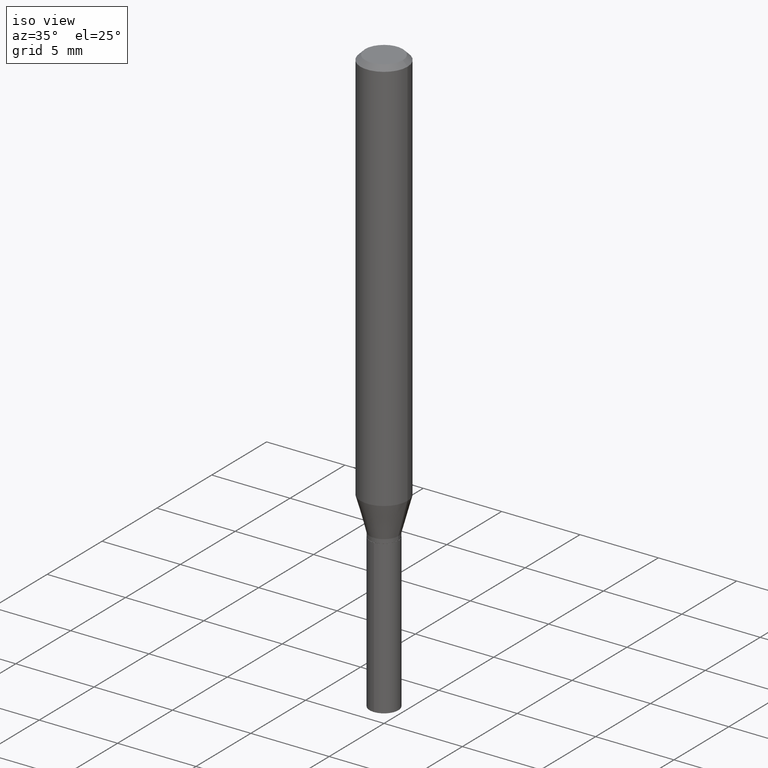
[diagram: clean part render]
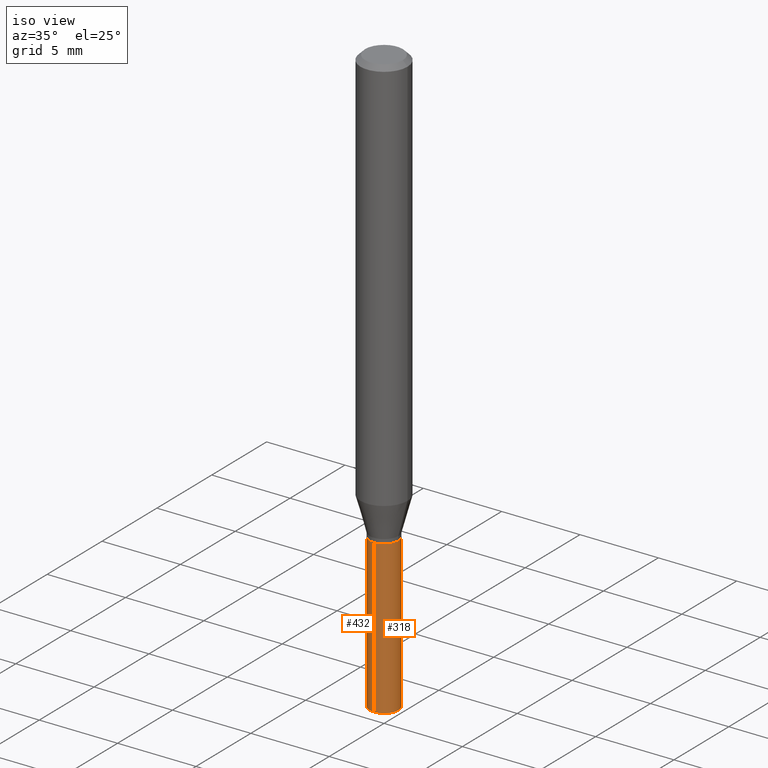
[diagram: same view with one multi-face feature highlighted, each face labeled with its STEP entity id]
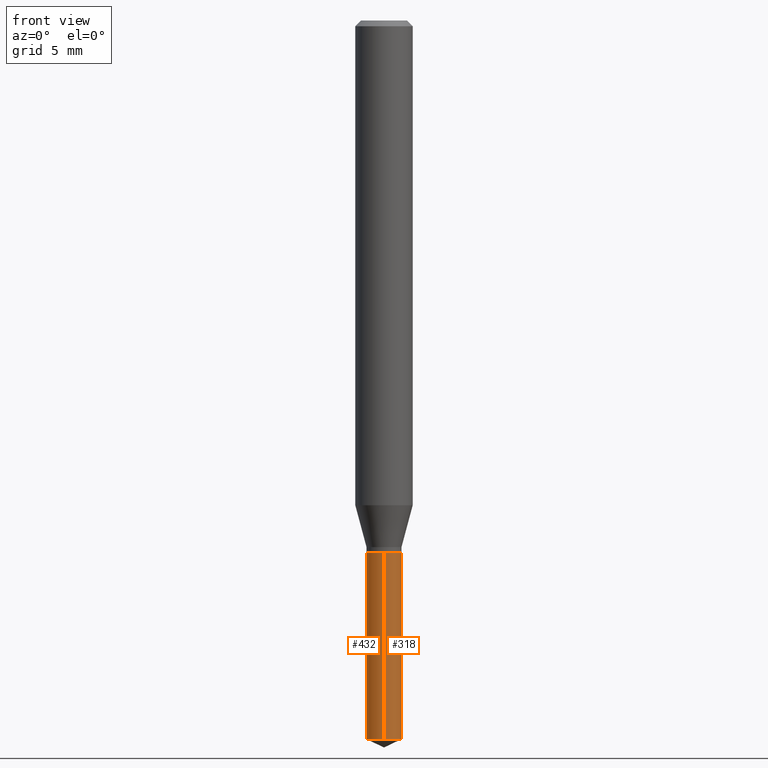
[diagram: same view with one multi-face feature highlighted, each face labeled with its STEP entity id]
A machine part, iso view. The highlighted faces form ONE feature: a constant-radius fillet chain: 2 tangent blend faces with common blend radius 0.9144 mm. The faces share edges in the B-rep.
A second angle (front view) of the same feature is appended — it is thin or edge-on in the first view.
Their STEP definitions:
[1] entity #432 (Cylinder):
#14 = EDGE_CURVE ( 'NONE', #48, #434, #154, .T. ) ;
#17 = CARTESIAN_POINT ( 'NONE',  ( 3.617614152943255727E-29, -5.164992693400060560E-15, -1.479312924306420030 ) ) ;
#18 = CARTESIAN_POINT ( 'NONE',  ( -2.513866563966788138E-16, -0.03600000000000381367, -1.094499999999999806 ) ) ;
#29 = CARTESIAN_POINT ( 'NONE',  ( 2.676565608369631794E-29, -3.821426325363822773E-15, -1.094499999999999806 ) ) ;
#40 = ORIENTED_EDGE ( 'NONE', *, *, #14, .F. ) ;
#48 = VERTEX_POINT ( 'NONE', #341 ) ;
#50 = LINE ( 'NONE', #18, #123 ) ;
#77 = ORIENTED_EDGE ( 'NONE', *, *, #314, .T. ) ;
#111 = DIRECTION ( 'NONE',  ( -2.445470214571802116E-29, 3.491479321953280158E-15, 1.000000000000000000 ) ) ;
#115 = VERTEX_POINT ( 'NONE', #276 ) ;
#123 = VECTOR ( 'NONE', #260, 39.37007874015748143 ) ;
#135 = EDGE_CURVE ( 'NONE', #467, #48, #247, .T. ) ;
#147 = FACE_OUTER_BOUND ( 'NONE', #240, .T. ) ;
#152 = ORIENTED_EDGE ( 'NONE', *, *, #324, .T. ) ;
#154 = CIRCLE ( 'NONE', #392, 0.03599999999999999728 ) ;
#155 = AXIS2_PLACEMENT_3D ( 'NONE', #29, #111, #272 ) ;
#164 = CARTESIAN_POINT ( 'NONE',  ( 2.557953848736627702E-16, 0.03599999999999617395, -1.094500000000000028 ) ) ;
#213 = DIRECTION ( 'NONE',  ( -6.982962677686265133E-15, -1.000000000000000000, 0.000000000000000000 ) ) ;
#240 = EDGE_LOOP ( 'NONE', ( #346, #77, #152, #40 ) ) ;
#247 = LINE ( 'NONE', #164, #331 ) ;
#260 = DIRECTION ( 'NONE',  ( -2.445470214571802396E-29, 3.491479321953280158E-15, 1.000000000000000000 ) ) ;
#272 = DIRECTION ( 'NONE',  ( -6.982962677686265133E-15, -1.000000000000000000, 3.794233324533699112E-15 ) ) ;
#276 = CARTESIAN_POINT ( 'NONE',  ( -2.513866563966693968E-16, -0.03600000000000517369, -1.479312924306420030 ) ) ;
#277 = AXIS2_PLACEMENT_3D ( 'NONE', #17, #328, #213 ) ;
#279 = DIRECTION ( 'NONE',  ( -2.445470214571802396E-29, 3.491479321953280158E-15, 1.000000000000000000 ) ) ;
#305 = CARTESIAN_POINT ( 'NONE',  ( -2.513866563966788138E-16, -0.03600000000000381367, -1.094499999999999806 ) ) ;
#306 = CARTESIAN_POINT ( 'NONE',  ( 2.557953848736722859E-16, 0.03599999999999483474, -1.479312924306420030 ) ) ;
#314 = EDGE_CURVE ( 'NONE', #467, #115, #325, .T. ) ;
#324 = EDGE_CURVE ( 'NONE', #115, #434, #50, .T. ) ;
#325 = CIRCLE ( 'NONE', #277, 0.03600000000000000422 ) ;
#328 = DIRECTION ( 'NONE',  ( -2.445470214571802116E-29, 3.491479321953280158E-15, 1.000000000000000000 ) ) ;
#331 = VECTOR ( 'NONE', #279, 39.37007874015748143 ) ;
#338 = CYLINDRICAL_SURFACE ( 'NONE', #155, 0.03599999999999999728 ) ;
#341 = CARTESIAN_POINT ( 'NONE',  ( 2.557953848736722366E-16, 0.03599999999999617395, -1.094500000000000028 ) ) ;
#346 = ORIENTED_EDGE ( 'NONE', *, *, #135, .F. ) ;
#372 = CARTESIAN_POINT ( 'NONE',  ( 2.676565608369631794E-29, -3.821426325363822773E-15, -1.094499999999999806 ) ) ;
#377 = DIRECTION ( 'NONE',  ( -2.445470214571802116E-29, 3.491479321953280158E-15, 1.000000000000000000 ) ) ;
#392 = AXIS2_PLACEMENT_3D ( 'NONE', #372, #377, #477 ) ;
#432 = ADVANCED_FACE ( 'NONE', ( #147 ), #338, .T. ) ;
#434 = VERTEX_POINT ( 'NONE', #305 ) ;
#467 = VERTEX_POINT ( 'NONE', #306 ) ;
#477 = DIRECTION ( 'NONE',  ( -6.982962677686265133E-15, -1.000000000000000000, 3.794233324533699112E-15 ) ) ;
[2] entity #318 (Cylinder):
#18 = CARTESIAN_POINT ( 'NONE',  ( -2.513866563966788138E-16, -0.03600000000000381367, -1.094499999999999806 ) ) ;
#21 = DIRECTION ( 'NONE',  ( -2.445470214571802116E-29, 3.491479321953280158E-15, 1.000000000000000000 ) ) ;
#27 = DIRECTION ( 'NONE',  ( -2.445470214571802116E-29, 3.491479321953280158E-15, 1.000000000000000000 ) ) ;
#44 = DIRECTION ( 'NONE',  ( -2.445470214571802116E-29, 3.491479321953280158E-15, 1.000000000000000000 ) ) ;
#47 = DIRECTION ( 'NONE',  ( -6.982962677686265133E-15, -1.000000000000000000, 3.794233324533699112E-15 ) ) ;
#48 = VERTEX_POINT ( 'NONE', #341 ) ;
#50 = LINE ( 'NONE', #18, #123 ) ;
#55 = CARTESIAN_POINT ( 'NONE',  ( 3.617614152943255727E-29, -5.164992693400060560E-15, -1.479312924306420030 ) ) ;
#59 = DIRECTION ( 'NONE',  ( -6.982962677686265133E-15, -1.000000000000000000, 3.794233324533699112E-15 ) ) ;
#115 = VERTEX_POINT ( 'NONE', #276 ) ;
#123 = VECTOR ( 'NONE', #260, 39.37007874015748143 ) ;
#126 = FACE_OUTER_BOUND ( 'NONE', #297, .T. ) ;
#135 = EDGE_CURVE ( 'NONE', #467, #48, #247, .T. ) ;
#164 = CARTESIAN_POINT ( 'NONE',  ( 2.557953848736627702E-16, 0.03599999999999617395, -1.094500000000000028 ) ) ;
#172 = DIRECTION ( 'NONE',  ( -6.982962677686265133E-15, -1.000000000000000000, 0.000000000000000000 ) ) ;
#206 = AXIS2_PLACEMENT_3D ( 'NONE', #368, #27, #59 ) ;
#211 = ORIENTED_EDGE ( 'NONE', *, *, #135, .T. ) ;
#235 = ORIENTED_EDGE ( 'NONE', *, *, #324, .F. ) ;
#247 = LINE ( 'NONE', #164, #331 ) ;
#257 = EDGE_CURVE ( 'NONE', #434, #48, #359, .T. ) ;
#260 = DIRECTION ( 'NONE',  ( -2.445470214571802396E-29, 3.491479321953280158E-15, 1.000000000000000000 ) ) ;
#276 = CARTESIAN_POINT ( 'NONE',  ( -2.513866563966693968E-16, -0.03600000000000517369, -1.479312924306420030 ) ) ;
#279 = DIRECTION ( 'NONE',  ( -2.445470214571802396E-29, 3.491479321953280158E-15, 1.000000000000000000 ) ) ;
#288 = ORIENTED_EDGE ( 'NONE', *, *, #257, .F. ) ;
#297 = EDGE_LOOP ( 'NONE', ( #472, #211, #288, #235 ) ) ;
#305 = CARTESIAN_POINT ( 'NONE',  ( -2.513866563966788138E-16, -0.03600000000000381367, -1.094499999999999806 ) ) ;
#306 = CARTESIAN_POINT ( 'NONE',  ( 2.557953848736722859E-16, 0.03599999999999483474, -1.479312924306420030 ) ) ;
#318 = ADVANCED_FACE ( 'NONE', ( #126 ), #445, .T. ) ;
#324 = EDGE_CURVE ( 'NONE', #115, #434, #50, .T. ) ;
#331 = VECTOR ( 'NONE', #279, 39.37007874015748143 ) ;
#341 = CARTESIAN_POINT ( 'NONE',  ( 2.557953848736722366E-16, 0.03599999999999617395, -1.094500000000000028 ) ) ;
#359 = CIRCLE ( 'NONE', #373, 0.03599999999999999728 ) ;
#368 = CARTESIAN_POINT ( 'NONE',  ( 2.676565608369631794E-29, -3.821426325363822773E-15, -1.094499999999999806 ) ) ;
#373 = AXIS2_PLACEMENT_3D ( 'NONE', #389, #44, #47 ) ;
#389 = CARTESIAN_POINT ( 'NONE',  ( 2.676565608369631794E-29, -3.821426325363822773E-15, -1.094499999999999806 ) ) ;
#408 = EDGE_CURVE ( 'NONE', #115, #467, #424, .T. ) ;
#424 = CIRCLE ( 'NONE', #448, 0.03600000000000000422 ) ;
#434 = VERTEX_POINT ( 'NONE', #305 ) ;
#445 = CYLINDRICAL_SURFACE ( 'NONE', #206, 0.03599999999999999728 ) ;
#448 = AXIS2_PLACEMENT_3D ( 'NONE', #55, #21, #172 ) ;
#467 = VERTEX_POINT ( 'NONE', #306 ) ;
#472 = ORIENTED_EDGE ( 'NONE', *, *, #408, .T. ) ;